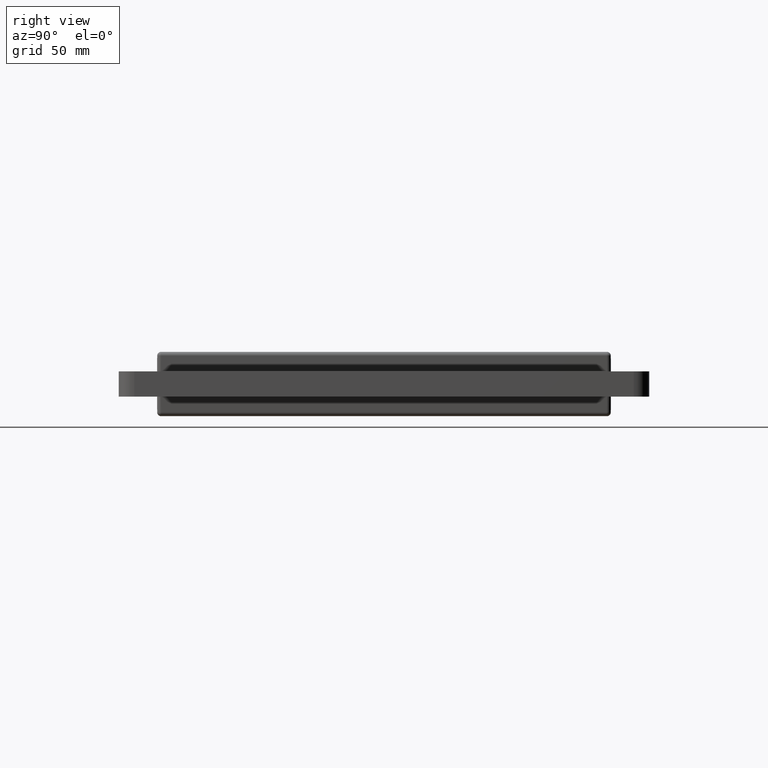
[diagram: clean part render]
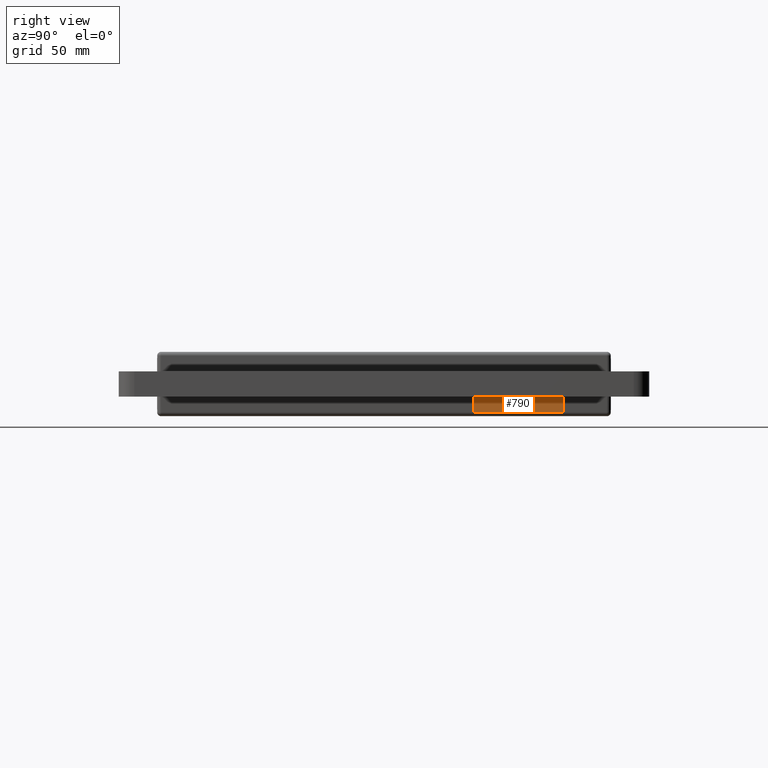
[diagram: same view with one face highlighted and labeled with its STEP entity id]
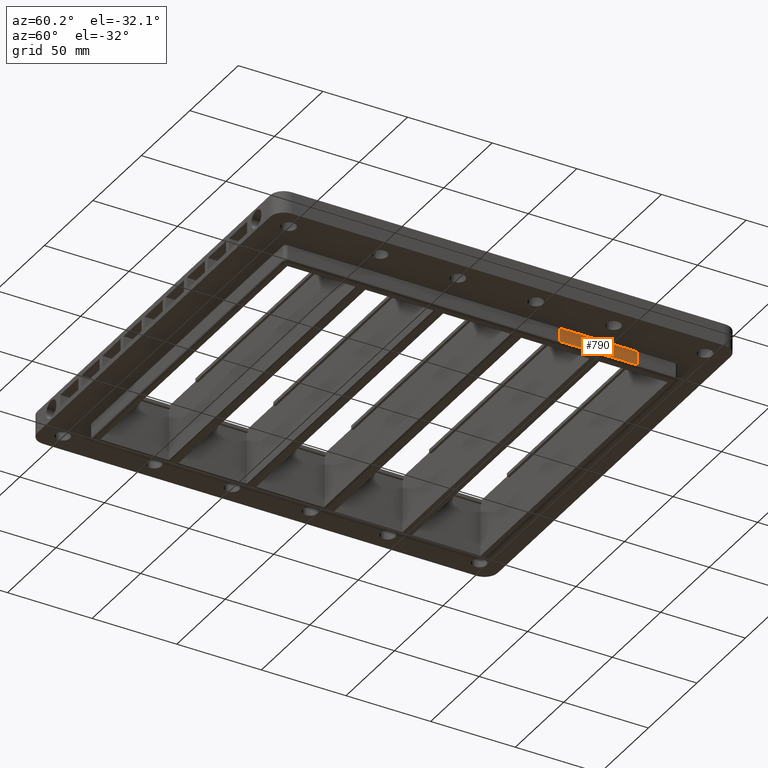
[diagram: same view with one face highlighted and labeled with its STEP entity id]
A machine part, right view. The second image highlights one B-rep face of the part: STEP entity #790.
A second angle (auxiliary view) of the same face is appended — the face is thin or edge-on in the first view.
In plain terms, the highlighted planar face has unit normal (-1, 0, 0.0087).
Its self-contained STEP definition (entity closure, byte-faithful):
#790=ADVANCED_FACE('',(#1499),#1169,.F.);
#1169=PLANE('',#8021);
#1499=FACE_OUTER_BOUND('',#1913,.T.);
#1913=EDGE_LOOP('',(#3109,#3110,#3111,#3112));
#3109=ORIENTED_EDGE('',*,*,#5496,.T.);
#3110=ORIENTED_EDGE('',*,*,#5497,.F.);
#3111=ORIENTED_EDGE('',*,*,#5498,.F.);
#3112=ORIENTED_EDGE('',*,*,#5499,.F.);
#4647=VERTEX_POINT('',#11409);
#4648=VERTEX_POINT('',#11410);
#4649=VERTEX_POINT('',#11412);
#4650=VERTEX_POINT('',#11414);
#5496=EDGE_CURVE('',#4647,#4648,#6454,.T.);
#5497=EDGE_CURVE('',#4649,#4648,#6455,.T.);
#5498=EDGE_CURVE('',#4650,#4649,#6456,.T.);
#5499=EDGE_CURVE('',#4647,#4650,#6457,.T.);
#6454=LINE('',#11408,#7300);
#6455=LINE('',#11411,#7301);
#6456=LINE('',#11413,#7302);
#6457=LINE('',#11415,#7303);
#7300=VECTOR('',#9256,1.);
#7301=VECTOR('',#9257,1.);
#7302=VECTOR('',#9258,1.);
#7303=VECTOR('',#9259,1.);
#8021=AXIS2_PLACEMENT_3D('',#11416,#9260,#9261);
#9256=DIRECTION('',(0.,-1.,0.));
#9257=DIRECTION('',(0.00872653549837264,0.,0.999961923064171));
#9258=DIRECTION('',(0.,-1.,0.));
#9259=DIRECTION('',(-0.00872653549837265,0.,-0.999961923064171));
#9260=DIRECTION('',(-0.999961923064171,0.,0.00872653549837265));
#9261=DIRECTION('',(0.00872653549837266,0.,0.999961923064171));
#11408=CARTESIAN_POINT('',(90.5872686779076,24.,10.));
#11409=CARTESIAN_POINT('',(90.5872686779076,-22.9999999999999,10.));
#11410=CARTESIAN_POINT('',(90.5872686779076,-68.9999999999999,10.0000000000007));
#11411=CARTESIAN_POINT('',(90.5173014249384,-68.9999999999999,1.98254692900437));
#11412=CARTESIAN_POINT('',(90.5173014249385,-68.9999999999999,1.98254692900437));
#11413=CARTESIAN_POINT('',(90.5173014249384,24.,1.98254692900325));
#11414=CARTESIAN_POINT('',(90.5173014249384,-22.9999999999999,1.98254692900325));
#11415=CARTESIAN_POINT('',(90.5872686779076,-22.9999999999999,10.));
#11416=CARTESIAN_POINT('',(90.5872686779076,24.,10.));